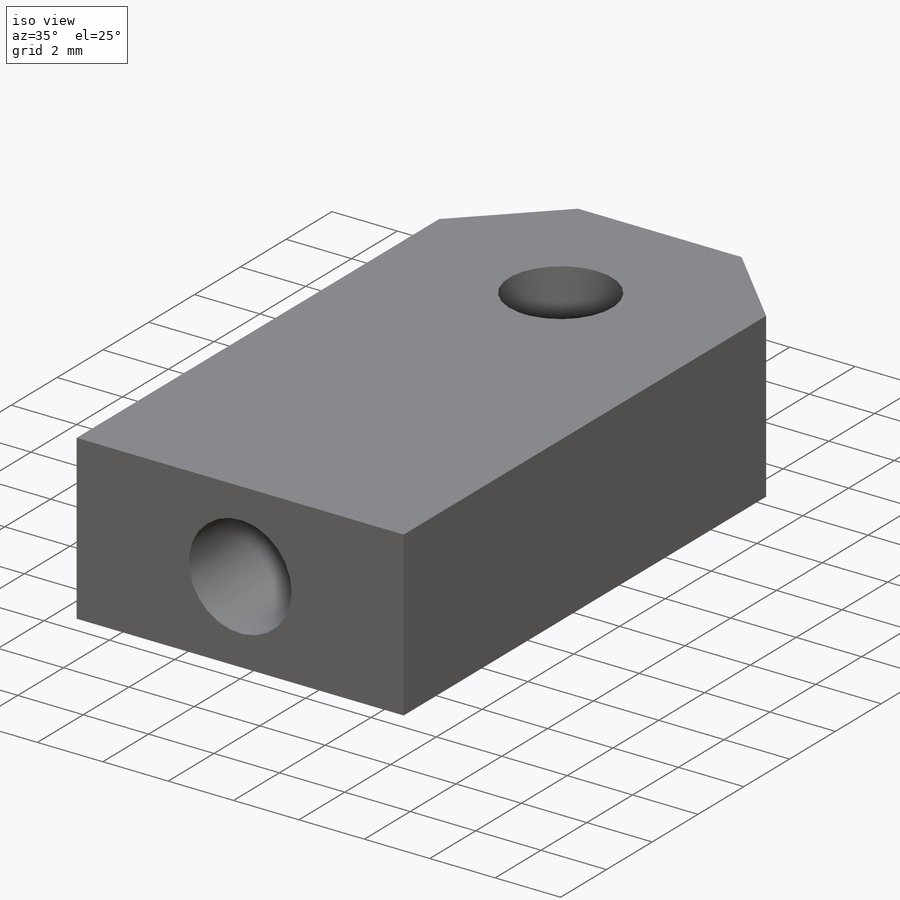
[diagram: iso view]
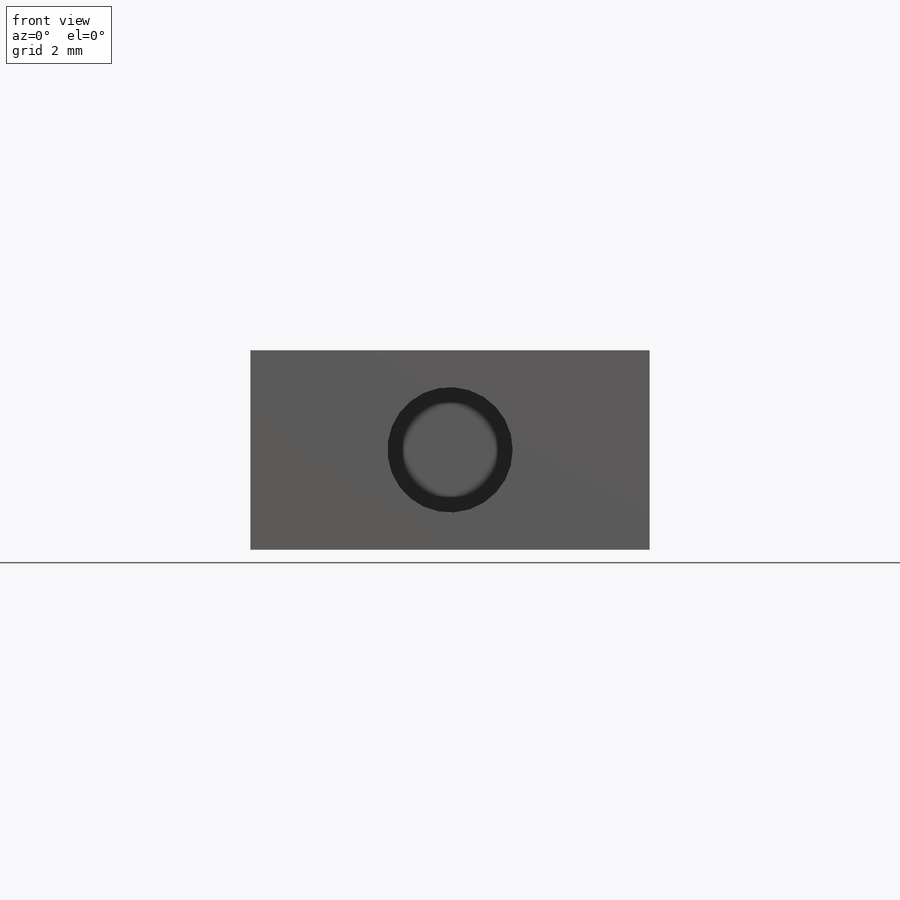
[diagram: front view]
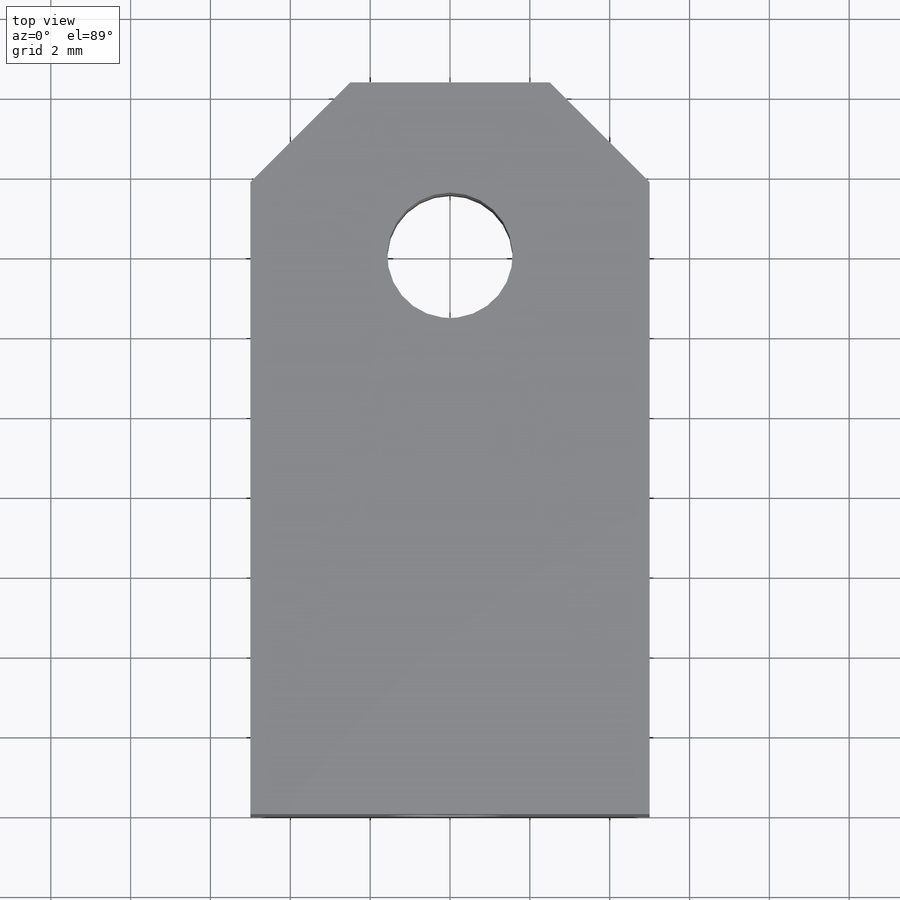
[diagram: top view]
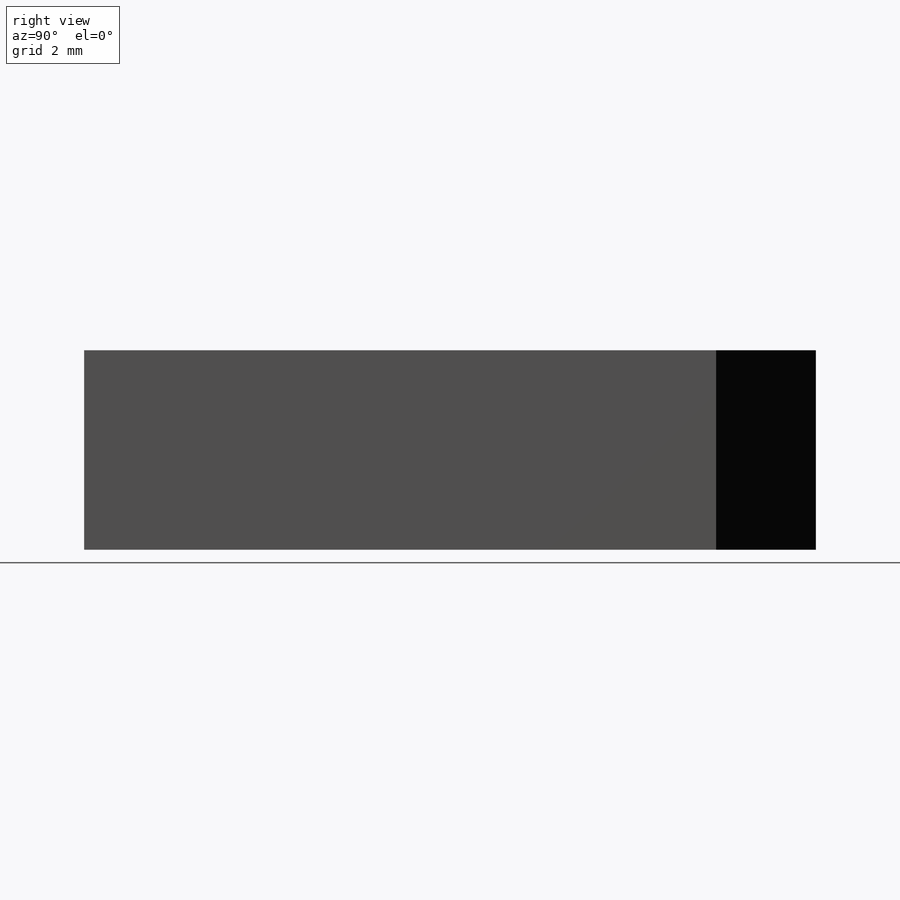
[diagram: right view]
SOLIDWORKS PART (.sldprt)
format: sldprt  version: not decoded by parser v0  size: 175,104 bytes
history: native  units: mm
features: sketch x3, material x1, extrude x1, cut_extrude x1 (+11 scaffold rows collapsed)
feature tree (17):
  scaffold x11  (default folders/planes/origin — collapsed)
  material  "Material <not specified>"
  sketch  "Sketch1"  dims[c1.D1=14.0mm c1.D2=3.0mm c1.D3=6.0mm c1.D4=8.0mm c1.D5=10.0mm c2.D1=~179.317996deg]
  sketch  "Sketch2"  dims[c1.D1=~4.903011mm c2.D1=135.0deg c2.D2=~2.796458mm c3.D2=135.0deg c3.D1=2.5mm c4.D1=135.0deg c4.D2=~4.330127mm c5.D2=60.0deg c5.D3=2.5mm c6.D3=135.0deg c6.D1=~2.610347mm c7.D1=150.0deg c7.D2=~1.158501mm c8.D2=135.0deg c8.D3=5.0mm c9.D3=135.0deg]
  extrude  "Boss-Extrude1"  Depth=5mm
  sketch  "Sketch3"  dims[D1=2.5mm]
  cut_extrude  "Cut-Extrude1"  Depth=8mm
decode coverage: 5 of 5 modeling features carry decoded parameters
note: ~ marks probable driven/reference dimensions
note: suppression state not decoded; provenance and decode notes live in map.json
